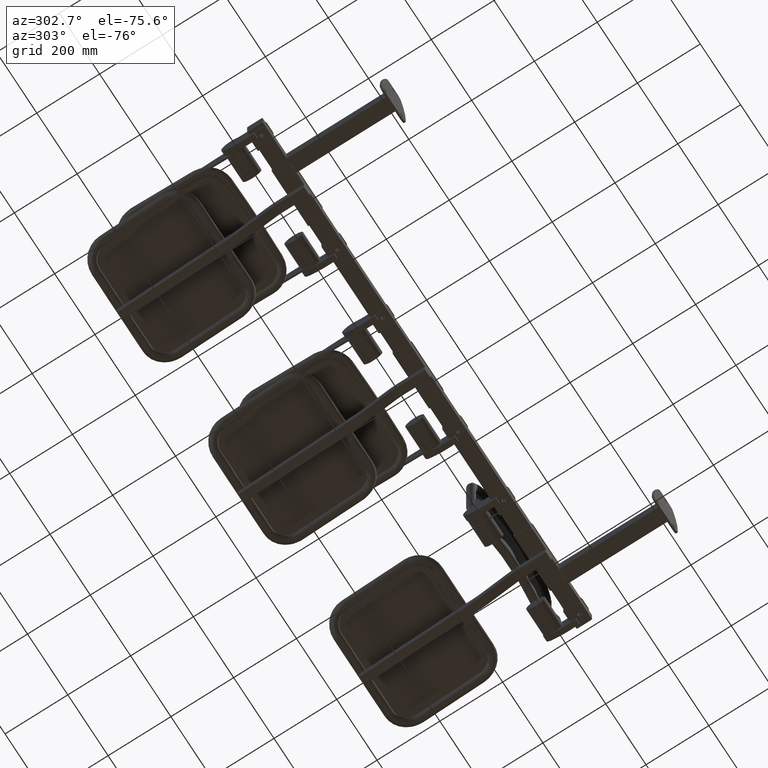
[diagram: clean part render]
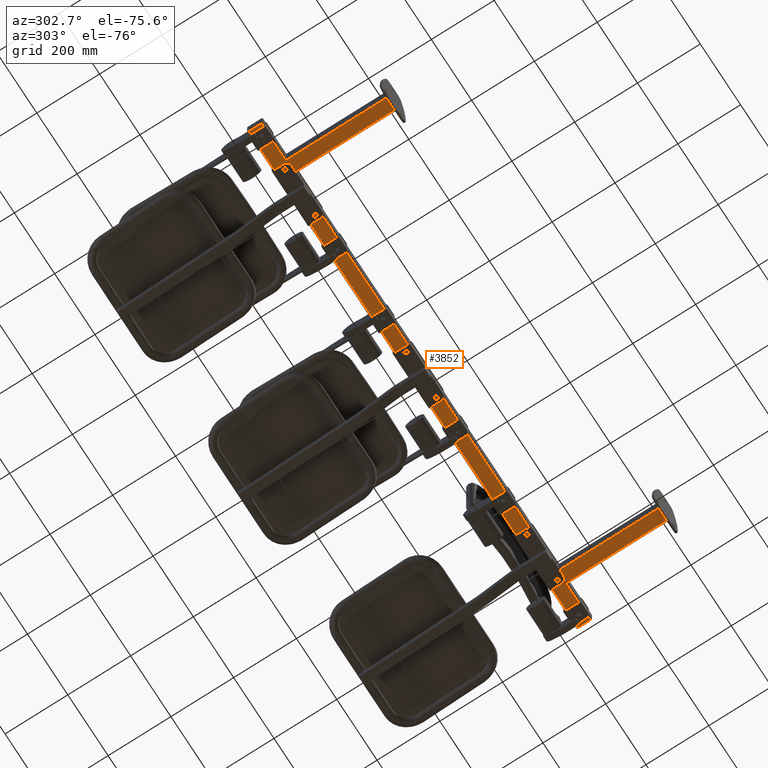
[diagram: same view with one face highlighted and labeled with its STEP entity id]
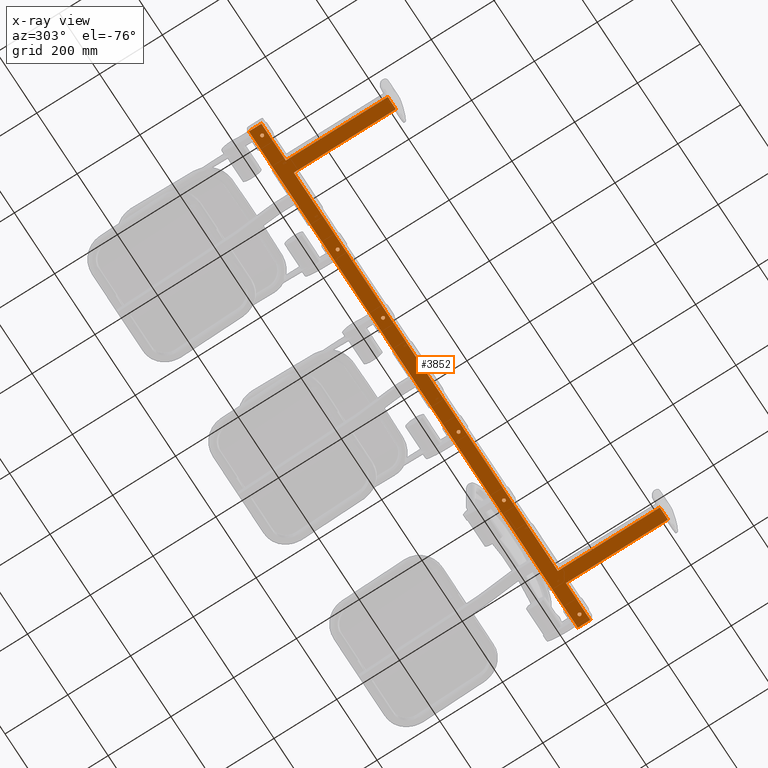
[diagram: x-ray of the same camera — body ghosted, the highlighted face saturated]
A machine part, auxiliary view. The second image highlights one B-rep face of the part: STEP entity #3852.
The next image is the same camera in x-ray: the body ghosted, the highlighted face saturated — about 0% of this face is hidden behind the body in this view.
In plain terms, the highlighted planar face has unit normal (0, 0, -1).
Its self-contained STEP definition (entity closure, byte-faithful):
#1611 = CARTESIAN_POINT ( 'NONE',  ( 187.5000000000000000, 347.0000000000000000, -25.00000000000000000 ) ) ;
#1612 = DIRECTION ( 'NONE',  ( 0.0000000000000000000, 0.0000000000000000000, 1.000000000000000000 ) ) ;
#1613 = DIRECTION ( 'NONE',  ( 1.000000000000000000, 0.0000000000000000000, 0.0000000000000000000 ) ) ;
#1621 = CARTESIAN_POINT ( 'NONE',  ( -187.5000000000000000, 347.0000000000000000, -25.00000000000000000 ) ) ;
#1622 = DIRECTION ( 'NONE',  ( 0.0000000000000000000, 0.0000000000000000000, 1.000000000000000000 ) ) ;
#1623 = DIRECTION ( 'NONE',  ( 1.000000000000000000, 0.0000000000000000000, 0.0000000000000000000 ) ) ;
#1631 = CARTESIAN_POINT ( 'NONE',  ( 412.5000000000000600, 347.0000000000000000, -25.00000000000000000 ) ) ;
#1632 = DIRECTION ( 'NONE',  ( 0.0000000000000000000, 0.0000000000000000000, 1.000000000000000000 ) ) ;
#1633 = DIRECTION ( 'NONE',  ( -1.000000000000000000, 0.0000000000000000000, 0.0000000000000000000 ) ) ;
#1641 = CARTESIAN_POINT ( 'NONE',  ( 787.5000000000001100, 347.0000000000000000, -25.00000000000000000 ) ) ;
#1642 = DIRECTION ( 'NONE',  ( 0.0000000000000000000, 0.0000000000000000000, 1.000000000000000000 ) ) ;
#1643 = DIRECTION ( 'NONE',  ( -1.000000000000000000, 0.0000000000000000000, 0.0000000000000000000 ) ) ;
#1651 = CARTESIAN_POINT ( 'NONE',  ( -412.5000000000000600, 347.0000000000000000, -25.00000000000000000 ) ) ;
#1652 = DIRECTION ( 'NONE',  ( 0.0000000000000000000, 0.0000000000000000000, 1.000000000000000000 ) ) ;
#1653 = DIRECTION ( 'NONE',  ( 1.000000000000000000, 0.0000000000000000000, 0.0000000000000000000 ) ) ;
#1672 = CARTESIAN_POINT ( 'NONE',  ( -792.7500000000001100, 347.0000000000000000, -25.00000000000000000 ) ) ;
#1677 = CARTESIAN_POINT ( 'NONE',  ( -417.7500000000000600, 347.0000000000000000, -25.00000000000000000 ) ) ;
#2875 = VERTEX_POINT ( 'NONE', #13480 ) ;
#2879 = VERTEX_POINT ( 'NONE', #13462 ) ;
#2880 = VERTEX_POINT ( 'NONE', #13482 ) ;
#2919 = VERTEX_POINT ( 'NONE', #13514 ) ;
#2920 = VERTEX_POINT ( 'NONE', #13515 ) ;
#3852 = ADVANCED_FACE ( 'NONE', ( #8343, #8351, #8345, #8342, #8349, #8352, #8353 ), #7474, .T. ) ;
#4518 = ORIENTED_EDGE ( 'NONE', *, *, #15165, .T. ) ;
#4519 = ORIENTED_EDGE ( 'NONE', *, *, #12203, .T. ) ;
#4520 = ORIENTED_EDGE ( 'NONE', *, *, #15173, .T. ) ;
#4521 = ORIENTED_EDGE ( 'NONE', *, *, #12204, .T. ) ;
#4522 = ORIENTED_EDGE ( 'NONE', *, *, #12414, .T. ) ;
#4523 = ORIENTED_EDGE ( 'NONE', *, *, #12205, .T. ) ;
#4524 = ORIENTED_EDGE ( 'NONE', *, *, #12206, .T. ) ;
#4525 = ORIENTED_EDGE ( 'NONE', *, *, #12207, .T. ) ;
#4526 = ORIENTED_EDGE ( 'NONE', *, *, #12208, .T. ) ;
#4527 = ORIENTED_EDGE ( 'NONE', *, *, #12209, .T. ) ;
#4528 = ORIENTED_EDGE ( 'NONE', *, *, #12210, .F. ) ;
#4529 = ORIENTED_EDGE ( 'NONE', *, *, #12211, .T. ) ;
#4530 = ORIENTED_EDGE ( 'NONE', *, *, #12212, .T. ) ;
#4531 = ORIENTED_EDGE ( 'NONE', *, *, #12213, .T. ) ;
#4532 = ORIENTED_EDGE ( 'NONE', *, *, #12436, .F. ) ;
#4533 = ORIENTED_EDGE ( 'NONE', *, *, #12214, .T. ) ;
#4534 = ORIENTED_EDGE ( 'NONE', *, *, #12215, .T. ) ;
#4535 = ORIENTED_EDGE ( 'NONE', *, *, #12216, .T. ) ;
#4536 = ORIENTED_EDGE ( 'NONE', *, *, #15177, .T. ) ;
#4537 = ORIENTED_EDGE ( 'NONE', *, *, #12217, .T. ) ;
#4538 = ORIENTED_EDGE ( 'NONE', *, *, #15169, .T. ) ;
#4539 = ORIENTED_EDGE ( 'NONE', *, *, #12218, .T. ) ;
#4540 = ORIENTED_EDGE ( 'NONE', *, *, #15161, .T. ) ;
#4541 = ORIENTED_EDGE ( 'NONE', *, *, #12219, .T. ) ;
#4697 = CARTESIAN_POINT ( 'NONE',  ( 695.0000000000002300, 331.0000000000000000, -25.00000000000000000 ) ) ;
#4739 = CARTESIAN_POINT ( 'NONE',  ( -655.0000000000000000, 6.000000000000000000, -25.00000000000000000 ) ) ;
#4862 = CARTESIAN_POINT ( 'NONE',  ( -654.9999999999998900, 331.0000000000000000, -25.00000000000000000 ) ) ;
#4873 = CARTESIAN_POINT ( 'NONE',  ( 816.0000000000000000, 331.0000000000000000, -25.00000000000000000 ) ) ;
#4937 = CARTESIAN_POINT ( 'NONE',  ( 655.0000000000000000, 6.000000000000000900, -25.00000000000000000 ) ) ;
#4952 = CARTESIAN_POINT ( 'NONE',  ( -695.0000000000002300, 331.0000000000000000, -25.00000000000000000 ) ) ;
#4962 = CARTESIAN_POINT ( 'NONE',  ( 654.9999999999998900, 331.0000000000000000, -25.00000000000000000 ) ) ;
#4963 = CARTESIAN_POINT ( 'NONE',  ( -816.0000000000000000, 331.0000000000000000, -25.00000000000000000 ) ) ;
#4984 = CARTESIAN_POINT ( 'NONE',  ( 816.0000000000000000, 371.0000000000000000, -25.00000000000000000 ) ) ;
#4987 = CARTESIAN_POINT ( 'NONE',  ( 695.0000000000001100, 6.000000000000000900, -25.00000000000000000 ) ) ;
#4988 = CARTESIAN_POINT ( 'NONE',  ( -816.0000000000000000, 371.0000000000000000, -25.00000000000000000 ) ) ;
#4991 = CARTESIAN_POINT ( 'NONE',  ( -695.0000000000001100, 6.000000000000000900, -25.00000000000000000 ) ) ;
#4995 = CARTESIAN_POINT ( 'NONE',  ( 792.7500000000001100, 347.0000000000000000, -25.00000000000000000 ) ) ;
#5002 = CARTESIAN_POINT ( 'NONE',  ( 407.2500000000000000, 347.0000000000000000, -25.00000000000000000 ) ) ;
#5013 = CARTESIAN_POINT ( 'NONE',  ( -407.2500000000000000, 347.0000000000000000, -25.00000000000000000 ) ) ;
#5017 = CARTESIAN_POINT ( 'NONE',  ( -182.2500000000000000, 347.0000000000000000, -25.00000000000000000 ) ) ;
#5021 = CARTESIAN_POINT ( 'NONE',  ( 192.7500000000000000, 347.0000000000000000, -25.00000000000000000 ) ) ;
#5242 = CIRCLE ( 'NONE', #13703, 5.249999999999976900 ) ;
#5306 = LINE ( 'NONE', #5942, #5311 ) ;
#5311 = VECTOR ( 'NONE', #5941, 1000.000000000000000 ) ;
#5896 = CARTESIAN_POINT ( 'NONE',  ( -787.5000000000001100, 347.0000000000000000, -25.00000000000000000 ) ) ;
#5897 = DIRECTION ( 'NONE',  ( 0.0000000000000000000, 0.0000000000000000000, 1.000000000000000000 ) ) ;
#5898 = DIRECTION ( 'NONE',  ( 1.000000000000000000, 0.0000000000000000000, 0.0000000000000000000 ) ) ;
#5941 = DIRECTION ( 'NONE',  ( 1.000000000000000000, -1.734723475976805600E-017, 0.0000000000000000000 ) ) ;
#5942 = CARTESIAN_POINT ( 'NONE',  ( -700.0000000000001100, 6.000000000000000900, -25.00000000000000000 ) ) ;
#6801 = CARTESIAN_POINT ( 'NONE',  ( 654.9999999999998900, 326.0000000000000000, -25.00000000000000000 ) ) ;
#6821 = DIRECTION ( 'NONE',  ( 1.000000000000000000, -0.0000000000000000000, -0.0000000000000000000 ) ) ;
#6831 = CARTESIAN_POINT ( 'NONE',  ( -187.5000000000000000, 347.0000000000000000, -25.00000000000000000 ) ) ;
#6832 = DIRECTION ( 'NONE',  ( 0.0000000000000000000, 0.0000000000000000000, 1.000000000000000000 ) ) ;
#6833 = DIRECTION ( 'NONE',  ( 1.000000000000000000, 0.0000000000000000000, 0.0000000000000000000 ) ) ;
#6834 = CARTESIAN_POINT ( 'NONE',  ( 787.5000000000001100, 347.0000000000000000, -25.00000000000000000 ) ) ;
#6835 = DIRECTION ( 'NONE',  ( 0.0000000000000000000, 0.0000000000000000000, 1.000000000000000000 ) ) ;
#6836 = DIRECTION ( 'NONE',  ( -1.000000000000000000, 0.0000000000000000000, 0.0000000000000000000 ) ) ;
#6837 = CARTESIAN_POINT ( 'NONE',  ( 816.0000000000000000, 331.0000000000000000, -25.00000000000000000 ) ) ;
#6838 = CARTESIAN_POINT ( 'NONE',  ( 818.0000000000000000, 371.0000000000000000, -25.00000000000000000 ) ) ;
#6839 = CARTESIAN_POINT ( 'NONE',  ( -787.5000000000001100, 347.0000000000000000, -25.00000000000000000 ) ) ;
#6840 = DIRECTION ( 'NONE',  ( 0.0000000000000000000, 0.0000000000000000000, 1.000000000000000000 ) ) ;
#6841 = DIRECTION ( 'NONE',  ( 1.000000000000000000, 0.0000000000000000000, 0.0000000000000000000 ) ) ;
#6842 = DIRECTION ( 'NONE',  ( -0.0000000000000000000, -1.000000000000000000, -0.0000000000000000000 ) ) ;
#6843 = CARTESIAN_POINT ( 'NONE',  ( 700.0000000000002300, 331.0000000000000000, -25.00000000000000000 ) ) ;
#6844 = DIRECTION ( 'NONE',  ( -1.000000000000000000, -0.0000000000000000000, -0.0000000000000000000 ) ) ;
#6845 = CARTESIAN_POINT ( 'NONE',  ( 695.0000000000001100, 6.000000000000002700, -25.00000000000000000 ) ) ;
#6846 = DIRECTION ( 'NONE',  ( -3.469446951953614200E-016, -1.000000000000000000, -0.0000000000000000000 ) ) ;
#6847 = CARTESIAN_POINT ( 'NONE',  ( 650.0000000000000000, 6.000000000000000900, -25.00000000000000000 ) ) ;
#6849 = DIRECTION ( 'NONE',  ( 1.000000000000000000, 0.0000000000000000000, 0.0000000000000000000 ) ) ;
#6850 = DIRECTION ( 'NONE',  ( -3.469446951953614200E-016, 1.000000000000000000, -0.0000000000000000000 ) ) ;
#6851 = CARTESIAN_POINT ( 'NONE',  ( -649.9999999999998900, 331.0000000000000000, -25.00000000000000000 ) ) ;
#6852 = DIRECTION ( 'NONE',  ( -1.000000000000000000, -0.0000000000000000000, -0.0000000000000000000 ) ) ;
#6853 = CARTESIAN_POINT ( 'NONE',  ( -655.0000000000000000, 6.000000000000001800, -25.00000000000000000 ) ) ;
#6854 = DIRECTION ( 'NONE',  ( -3.469446951953614200E-016, -1.000000000000000000, -0.0000000000000000000 ) ) ;
#6855 = CARTESIAN_POINT ( 'NONE',  ( -695.0000000000002300, 326.0000000000000000, -25.00000000000000000 ) ) ;
#6856 = DIRECTION ( 'NONE',  ( -3.469446951953614200E-016, 1.000000000000000000, -0.0000000000000000000 ) ) ;
#6857 = CARTESIAN_POINT ( 'NONE',  ( -818.0000000000000000, 331.0000000000000000, -25.00000000000000000 ) ) ;
#6858 = DIRECTION ( 'NONE',  ( -1.000000000000000000, -0.0000000000000000000, -0.0000000000000000000 ) ) ;
#6859 = CARTESIAN_POINT ( 'NONE',  ( -816.0000000000000000, 371.0000000000000000, -25.00000000000000000 ) ) ;
#6860 = DIRECTION ( 'NONE',  ( -0.0000000000000000000, 1.000000000000000000, -0.0000000000000000000 ) ) ;
#6862 = CARTESIAN_POINT ( 'NONE',  ( -412.5000000000000600, 347.0000000000000000, -25.00000000000000000 ) ) ;
#6863 = DIRECTION ( 'NONE',  ( 0.0000000000000000000, 0.0000000000000000000, 1.000000000000000000 ) ) ;
#6864 = DIRECTION ( 'NONE',  ( 1.000000000000000000, 0.0000000000000000000, 0.0000000000000000000 ) ) ;
#6865 = CARTESIAN_POINT ( 'NONE',  ( 412.5000000000000600, 347.0000000000000000, -25.00000000000000000 ) ) ;
#6866 = DIRECTION ( 'NONE',  ( 0.0000000000000000000, 0.0000000000000000000, 1.000000000000000000 ) ) ;
#6867 = DIRECTION ( 'NONE',  ( -1.000000000000000000, 0.0000000000000000000, 0.0000000000000000000 ) ) ;
#6870 = CARTESIAN_POINT ( 'NONE',  ( 187.5000000000000000, 347.0000000000000000, -25.00000000000000000 ) ) ;
#6871 = DIRECTION ( 'NONE',  ( 0.0000000000000000000, 0.0000000000000000000, 1.000000000000000000 ) ) ;
#6872 = DIRECTION ( 'NONE',  ( 1.000000000000000000, 0.0000000000000000000, 0.0000000000000000000 ) ) ;
#7465 = DIRECTION ( 'NONE',  ( 0.0000000000000000000, 0.0000000000000000000, -1.000000000000000000 ) ) ;
#7469 = CARTESIAN_POINT ( 'NONE',  ( 0.0000000000000000000, 0.0000000000000000000, -25.00000000000000000 ) ) ;
#7474 = PLANE ( 'NONE',  #15324 ) ;
#7478 = DIRECTION ( 'NONE',  ( -1.000000000000000000, 0.0000000000000000000, -0.0000000000000000000 ) ) ;
#8342 = FACE_OUTER_BOUND ( 'NONE', #13110, .T. ) ;
#8343 = FACE_BOUND ( 'NONE', #13142, .T. ) ;
#8345 = FACE_BOUND ( 'NONE', #12702, .T. ) ;
#8349 = FACE_BOUND ( 'NONE', #12676, .T. ) ;
#8351 = FACE_BOUND ( 'NONE', #12701, .T. ) ;
#8352 = FACE_BOUND ( 'NONE', #12662, .T. ) ;
#8353 = FACE_BOUND ( 'NONE', #13127, .T. ) ;
#11650 = CIRCLE ( 'NONE', #14847, 5.250000000000004400 ) ;
#11656 = CIRCLE ( 'NONE', #14849, 5.250000000000004400 ) ;
#11662 = CIRCLE ( 'NONE', #14851, 5.250000000000032000 ) ;
#11668 = CIRCLE ( 'NONE', #14853, 5.249999999999976900 ) ;
#11674 = CIRCLE ( 'NONE', #14855, 5.250000000000032000 ) ;
#12203 = EDGE_CURVE ( 'NONE', #14600, #2879, #13384, .T. ) ;
#12204 = EDGE_CURVE ( 'NONE', #14578, #2875, #13385, .T. ) ;
#12205 = EDGE_CURVE ( 'NONE', #2920, #15371, #13386, .T. ) ;
#12206 = EDGE_CURVE ( 'NONE', #14447, #14439, #13387, .T. ) ;
#12207 = EDGE_CURVE ( 'NONE', #14439, #14220, #13388, .T. ) ;
#12208 = EDGE_CURVE ( 'NONE', #14220, #13040, #13391, .T. ) ;
#12209 = EDGE_CURVE ( 'NONE', #13040, #14445, #13393, .T. ) ;
#12210 = EDGE_CURVE ( 'NONE', #14348, #14445, #13395, .T. ) ;
#12211 = EDGE_CURVE ( 'NONE', #14348, #14398, #13389, .T. ) ;
#12212 = EDGE_CURVE ( 'NONE', #14398, #14196, #13399, .T. ) ;
#12213 = EDGE_CURVE ( 'NONE', #14196, #13087, #13401, .T. ) ;
#12214 = EDGE_CURVE ( 'NONE', #14453, #14378, #13403, .T. ) ;
#12215 = EDGE_CURVE ( 'NONE', #14378, #14400, #13405, .T. ) ;
#12216 = EDGE_CURVE ( 'NONE', #14400, #14447, #13407, .T. ) ;
#12217 = EDGE_CURVE ( 'NONE', #14596, #15374, #13409, .T. ) ;
#12218 = EDGE_CURVE ( 'NONE', #2880, #14585, #13397, .T. ) ;
#12219 = EDGE_CURVE ( 'NONE', #14604, #2919, #13411, .T. ) ;
#12414 = EDGE_CURVE ( 'NONE', #15371, #2920, #5242, .T. ) ;
#12436 = EDGE_CURVE ( 'NONE', #14453, #13087, #5306, .T. ) ;
#12662 = EDGE_LOOP ( 'NONE', ( #4538, #4539 ) ) ;
#12676 = EDGE_LOOP ( 'NONE', ( #4536, #4537 ) ) ;
#12701 = EDGE_LOOP ( 'NONE', ( #4520, #4521 ) ) ;
#12702 = EDGE_LOOP ( 'NONE', ( #4522, #4523 ) ) ;
#13040 = VERTEX_POINT ( 'NONE', #4697 ) ;
#13087 = VERTEX_POINT ( 'NONE', #4739 ) ;
#13110 = EDGE_LOOP ( 'NONE', ( #4524, #4525, #4526, #4527, #4528, #4529, #4530, #4531, #4532, #4533, #4534, #4535 ) ) ;
#13127 = EDGE_LOOP ( 'NONE', ( #4540, #4541 ) ) ;
#13142 = EDGE_LOOP ( 'NONE', ( #4518, #4519 ) ) ;
#13384 = CIRCLE ( 'NONE', #13656, 5.250000000000004400 ) ;
#13385 = CIRCLE ( 'NONE', #13657, 5.249999999999976900 ) ;
#13386 = CIRCLE ( 'NONE', #13658, 5.249999999999976900 ) ;
#13387 = LINE ( 'NONE', #6838, #13390 ) ;
#13388 = LINE ( 'NONE', #6837, #13392 ) ;
#13389 = LINE ( 'NONE', #6801, #13400 ) ;
#13390 = VECTOR ( 'NONE', #6821, 1000.000000000000000 ) ;
#13391 = LINE ( 'NONE', #6843, #13394 ) ;
#13392 = VECTOR ( 'NONE', #6842, 1000.000000000000000 ) ;
#13393 = LINE ( 'NONE', #6845, #13396 ) ;
#13394 = VECTOR ( 'NONE', #6844, 1000.000000000000000 ) ;
#13395 = LINE ( 'NONE', #6847, #13398 ) ;
#13396 = VECTOR ( 'NONE', #6846, 1000.000000000000000 ) ;
#13397 = CIRCLE ( 'NONE', #13660, 5.250000000000032000 ) ;
#13398 = VECTOR ( 'NONE', #6849, 1000.000000000000000 ) ;
#13399 = LINE ( 'NONE', #6851, #13402 ) ;
#13400 = VECTOR ( 'NONE', #6850, 1000.000000000000000 ) ;
#13401 = LINE ( 'NONE', #6853, #13404 ) ;
#13402 = VECTOR ( 'NONE', #6852, 1000.000000000000000 ) ;
#13403 = LINE ( 'NONE', #6855, #13406 ) ;
#13404 = VECTOR ( 'NONE', #6854, 1000.000000000000000 ) ;
#13405 = LINE ( 'NONE', #6857, #13408 ) ;
#13406 = VECTOR ( 'NONE', #6856, 1000.000000000000000 ) ;
#13407 = LINE ( 'NONE', #6859, #13410 ) ;
#13408 = VECTOR ( 'NONE', #6858, 1000.000000000000000 ) ;
#13409 = CIRCLE ( 'NONE', #13659, 5.250000000000032000 ) ;
#13410 = VECTOR ( 'NONE', #6860, 1000.000000000000000 ) ;
#13411 = CIRCLE ( 'NONE', #13661, 5.250000000000004400 ) ;
#13462 = CARTESIAN_POINT ( 'NONE',  ( -192.7500000000000000, 347.0000000000000000, -25.00000000000000000 ) ) ;
#13480 = CARTESIAN_POINT ( 'NONE',  ( 782.2500000000001100, 347.0000000000000000, -25.00000000000000000 ) ) ;
#13482 = CARTESIAN_POINT ( 'NONE',  ( 417.7500000000000600, 347.0000000000000000, -25.00000000000000000 ) ) ;
#13514 = CARTESIAN_POINT ( 'NONE',  ( 182.2500000000000000, 347.0000000000000000, -25.00000000000000000 ) ) ;
#13515 = CARTESIAN_POINT ( 'NONE',  ( -782.2500000000001100, 347.0000000000000000, -25.00000000000000000 ) ) ;
#13656 = AXIS2_PLACEMENT_3D ( 'NONE', #6831, #6832, #6833 ) ;
#13657 = AXIS2_PLACEMENT_3D ( 'NONE', #6834, #6835, #6836 ) ;
#13658 = AXIS2_PLACEMENT_3D ( 'NONE', #6839, #6840, #6841 ) ;
#13659 = AXIS2_PLACEMENT_3D ( 'NONE', #6862, #6863, #6864 ) ;
#13660 = AXIS2_PLACEMENT_3D ( 'NONE', #6865, #6866, #6867 ) ;
#13661 = AXIS2_PLACEMENT_3D ( 'NONE', #6870, #6871, #6872 ) ;
#13703 = AXIS2_PLACEMENT_3D ( 'NONE', #5896, #5897, #5898 ) ;
#14196 = VERTEX_POINT ( 'NONE', #4862 ) ;
#14220 = VERTEX_POINT ( 'NONE', #4873 ) ;
#14348 = VERTEX_POINT ( 'NONE', #4937 ) ;
#14378 = VERTEX_POINT ( 'NONE', #4952 ) ;
#14398 = VERTEX_POINT ( 'NONE', #4962 ) ;
#14400 = VERTEX_POINT ( 'NONE', #4963 ) ;
#14439 = VERTEX_POINT ( 'NONE', #4984 ) ;
#14445 = VERTEX_POINT ( 'NONE', #4987 ) ;
#14447 = VERTEX_POINT ( 'NONE', #4988 ) ;
#14453 = VERTEX_POINT ( 'NONE', #4991 ) ;
#14578 = VERTEX_POINT ( 'NONE', #4995 ) ;
#14585 = VERTEX_POINT ( 'NONE', #5002 ) ;
#14596 = VERTEX_POINT ( 'NONE', #5013 ) ;
#14600 = VERTEX_POINT ( 'NONE', #5017 ) ;
#14604 = VERTEX_POINT ( 'NONE', #5021 ) ;
#14847 = AXIS2_PLACEMENT_3D ( 'NONE', #1611, #1612, #1613 ) ;
#14849 = AXIS2_PLACEMENT_3D ( 'NONE', #1621, #1622, #1623 ) ;
#14851 = AXIS2_PLACEMENT_3D ( 'NONE', #1631, #1632, #1633 ) ;
#14853 = AXIS2_PLACEMENT_3D ( 'NONE', #1641, #1642, #1643 ) ;
#14855 = AXIS2_PLACEMENT_3D ( 'NONE', #1651, #1652, #1653 ) ;
#15161 = EDGE_CURVE ( 'NONE', #2919, #14604, #11650, .T. ) ;
#15165 = EDGE_CURVE ( 'NONE', #2879, #14600, #11656, .T. ) ;
#15169 = EDGE_CURVE ( 'NONE', #14585, #2880, #11662, .T. ) ;
#15173 = EDGE_CURVE ( 'NONE', #2875, #14578, #11668, .T. ) ;
#15177 = EDGE_CURVE ( 'NONE', #15374, #14596, #11674, .T. ) ;
#15324 = AXIS2_PLACEMENT_3D ( 'NONE', #7469, #7465, #7478 ) ;
#15371 = VERTEX_POINT ( 'NONE', #1672 ) ;
#15374 = VERTEX_POINT ( 'NONE', #1677 ) ;